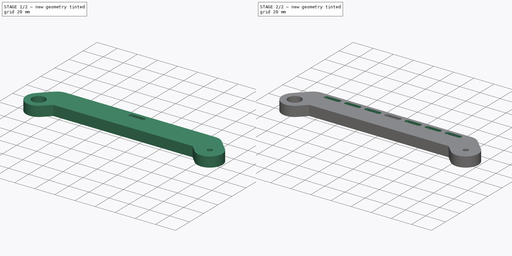
[diagram: build sequence overview — one tinted view per stage of 2, left to right]
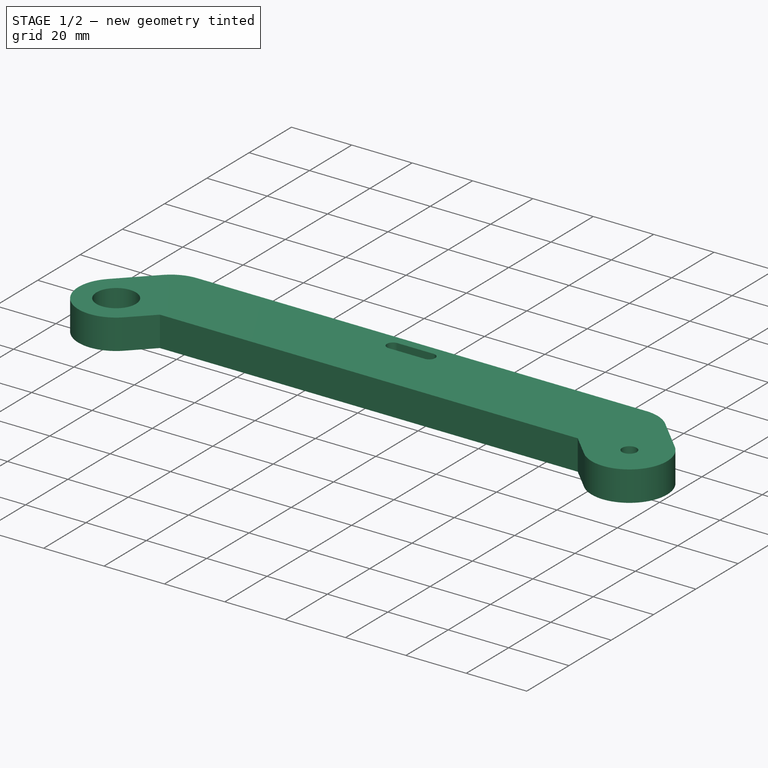
[diagram: stage 1 of 2 — iso view after this stage's code; geometry added in this stage tinted green]
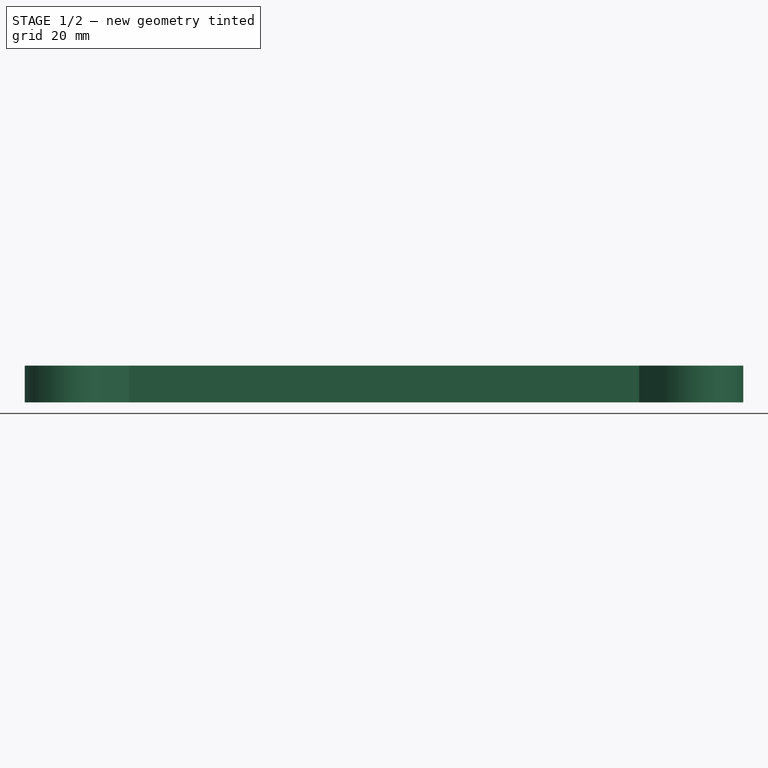
[diagram: stage 1 of 2 — front view after this stage's code; geometry added in this stage tinted green]
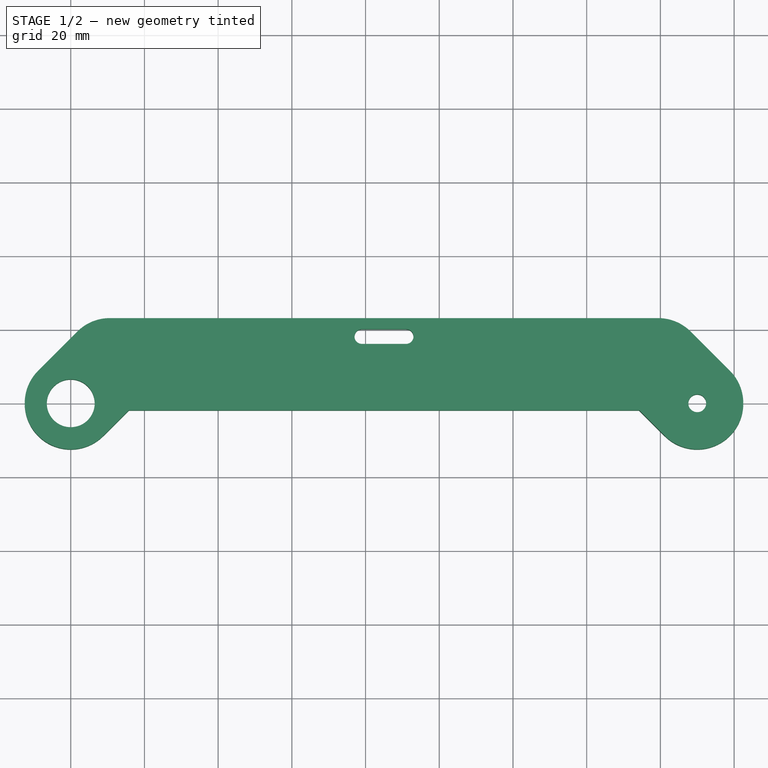
[diagram: stage 1 of 2 — top view after this stage's code; geometry added in this stage tinted green]
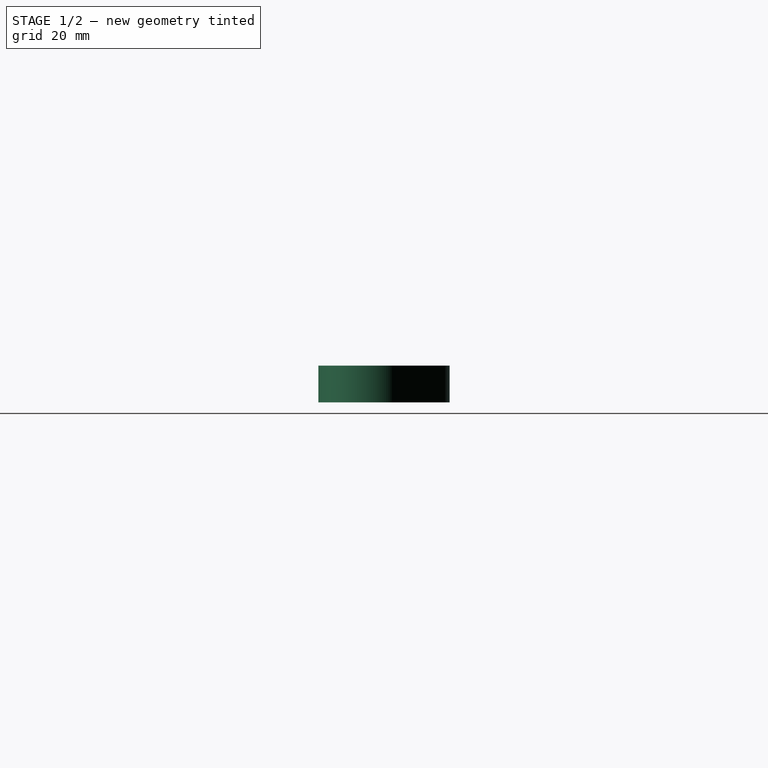
[diagram: stage 1 of 2 — right view after this stage's code; geometry added in this stage tinted green]
FCSTD DOCUMENT  (FreeCAD 0.20R29410 (Git))
Label: #20_Link2Parallel
License: All rights reserved
LicenseURL: http://en.wikipedia.org/wiki/All_rights_reserved
objects: Sketcher::SketchObject×2, PartDesign::LinearPattern×2, PartDesign::Pad×1, PartDesign::Pocket×1, PartDesign::Body×1
note: 9 computed .brp shape members not serialized (recipe doc carries the construction recipe); baked Part::Feature solids carry a one-line shape summary decoded from their .brp

FEATURE [Sketcher::SketchObject] Sketch
  FullyConstrained = true
  MapMode = 5
  Support = -> [XY_Plane]
  sketch-geometry (14):
    g0: Circle CenterX=0 CenterY=0 CenterZ=0 NormalX=0 NormalY=0 NormalZ=1 AngleXU=0 Radius=6.5
    g1: Circle CenterX=170 CenterY=0 CenterZ=0 NormalX=0 NormalY=0 NormalZ=1 AngleXU=0 Radius=2.425
    g2: ArcOfCircle CenterX=0 CenterY=0 CenterZ=0 NormalX=0 NormalY=0 NormalZ=1 AngleXU=0 Radius=12.5 StartAngle=2.35619 EndAngle=5.49779
    g3: ArcOfCircle CenterX=170 CenterY=0 CenterZ=0 NormalX=0 NormalY=0 NormalZ=1 AngleXU=0 Radius=12.5 StartAngle=3.92699 EndAngle=7.06858
    g4: LineSegment StartX=-8.83883 StartY=8.83883 StartZ=0 EndX=1.76777 EndY=19.4454 EndZ=0
    g5: LineSegment StartX=10.6066 StartY=23.1066 StartZ=0 EndX=159.393 EndY=23.1066 EndZ=0
    g6: LineSegment StartX=168.232 StartY=19.4454 StartZ=0 EndX=178.839 EndY=8.83883 EndZ=0
    g7: ArcOfCircle CenterX=159.393 CenterY=10.6066 CenterZ=0 NormalX=0 NormalY=0 NormalZ=1 AngleXU=0 Radius=12.5 StartAngle=0.785398 EndAngle=1.5708
    g8: ArcOfCircle CenterX=10.6066 CenterY=10.6066 CenterZ=0 NormalX=0 NormalY=0 NormalZ=1 AngleXU=0 Radius=12.5 StartAngle=1.5708 EndAngle=2.35619
    g9: LineSegment StartX=0 StartY=0 StartZ=0 EndX=10.6066 EndY=10.6066 EndZ=0
    g10: LineSegment StartX=159.393 StartY=10.6066 StartZ=0 EndX=170 EndY=0 EndZ=0
    g11: LineSegment StartX=15.7843 StartY=-1.8934 StartZ=0 EndX=154.216 EndY=-1.8934 EndZ=0
    g12: LineSegment StartX=154.216 StartY=-1.8934 StartZ=0 EndX=161.161 EndY=-8.83883 EndZ=0
    g13: LineSegment StartX=15.7843 StartY=-1.8934 StartZ=0 EndX=8.83883 EndY=-8.83883 EndZ=0
  constraints (33):
    c: Coincident(g0,g-1)
    c: Diameter(g0) = 13
    c: PointOnObject(g1,g-1)
    c: Diameter(g1) = 4.85
    c: Coincident(g2,g0)
    c: Coincident(g3,g1)
    c: Diameter(g3) = 25
    c: Diameter(g2) = 25
    c: Horizontal(g5)
    c: Tangent(g6,g7) = 1.5708
    c: Tangent(g5,g7) = 1.5708
    c: Tangent(g5,g8) = 1.5708
    c: Tangent(g4,g8) = 1.5708
    c: Coincident(g9,g0)
    c: Coincident(g9,g8)
    c: Coincident(g10,g7)
    c: Coincident(g10,g1)
    c: Equal(g9,g10)
    c: Angle(g10,g-1) = 0.785398
    c: Angle(g-1,g9) = 0.785398
    c: Distance(g10) = 15
    c: Diameter(g7) = 25
    c: Horizontal(g11)
    c: Coincident(g12,g11)
    c: Coincident(g13,g11)
    c: Parallel(g6,g12)
    c: Parallel(g4,g13)
    c: DistanceY(g11,g5) = 25
    c: Distance(g1,g0) = 170
    c: Tangent(g3,g6) = 1.5708
    c: Tangent(g3,g12) = -1.5708
    c: Tangent(g2,g13) = 1.5708
    c: Tangent(g2,g4) = 1.5708
FEATURE [PartDesign::Pad] Pad
  Direction = (0,0,1)
  Length = 10
  Length2 = 10
  Profile = -> Sketch
  ReferenceAxis = -> Sketch [N_Axis]
  Refine = true
  Type = 0
FEATURE [Sketcher::SketchObject] Sketch001
  ExternalGeometry = -> [Pad]
  FullyConstrained = true
  MapMode = 5
  Placement = pos=(0,0,10) rot=(0,0,1;0rad)
  Support = -> [Pad]
  sketch-geometry (6):
    g0: ArcOfCircle CenterX=79 CenterY=18.1066 CenterZ=0 NormalX=0 NormalY=0 NormalZ=1 AngleXU=0 Radius=2 StartAngle=1.5708 EndAngle=4.71239
    g1: ArcOfCircle CenterX=91 CenterY=18.1066 CenterZ=0 NormalX=0 NormalY=0 NormalZ=1 AngleXU=0 Radius=2 StartAngle=4.71239 EndAngle=7.85398
    g2: LineSegment StartX=79 StartY=16.1066 StartZ=0 EndX=91 EndY=16.1066 EndZ=0
    g3: LineSegment StartX=91 StartY=20.1066 StartZ=0 EndX=79 EndY=20.1066 EndZ=0
    g4: LineSegment StartX=15.7843 StartY=-1.8934 StartZ=0 EndX=79 EndY=18.1066 EndZ=0
    g5: LineSegment StartX=91 StartY=18.1066 StartZ=0 EndX=154.216 EndY=-1.8934 EndZ=0
  constraints (14):
    c: Tangent(g0,g2) = -1.5708
    c: Tangent(g2,g1) = -1.5708
    c: Tangent(g1,g3) = -1.5708
    c: Tangent(g3,g0) = -1.5708
    c: Equal(g0,g1)
    c: Horizontal(g2)
    c: Diameter(g1) = 4
    c: Distance(g0,g1) = 12
    c: DistanceY(g-3,g1) = 20
    c: Coincident(g4,g-3)
    c: Coincident(g4,g0)
    c: Coincident(g5,g1)
    c: Coincident(g5,g-3)
    c: Equal(g5,g4)
FEATURE [PartDesign::Pocket] Pocket
  BaseFeature = -> Pad
  Direction = (0,0,-1)
  Length = 15
  Length2 = 5
  Profile = -> Sketch001
  ReferenceAxis = -> Sketch001 [N_Axis]
  Refine = true
  Type = 0
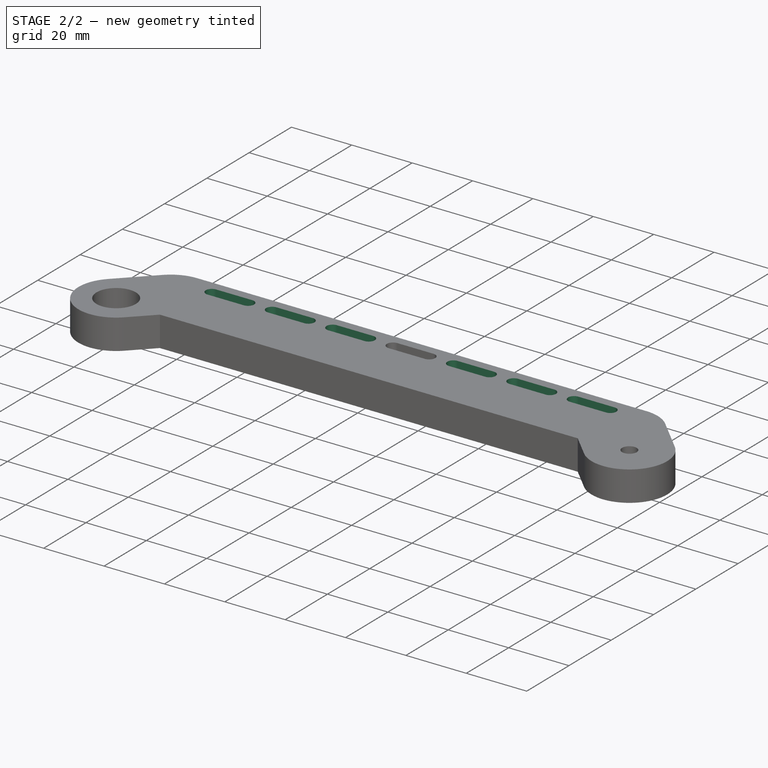
[diagram: stage 2 of 2 — iso view after this stage's code; geometry added in this stage tinted green]
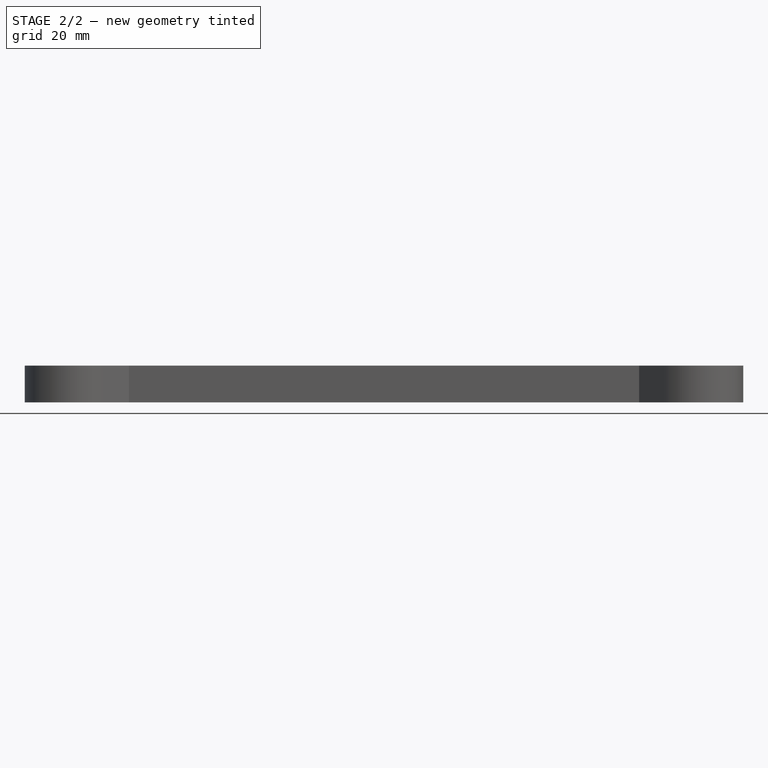
[diagram: stage 2 of 2 — front view after this stage's code; geometry added in this stage tinted green]
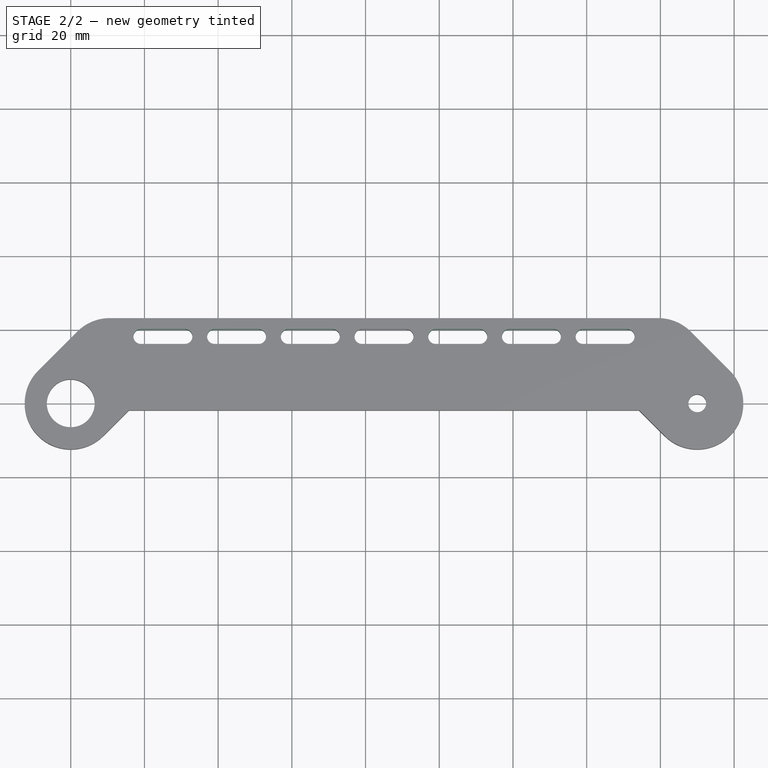
[diagram: stage 2 of 2 — top view after this stage's code; geometry added in this stage tinted green]
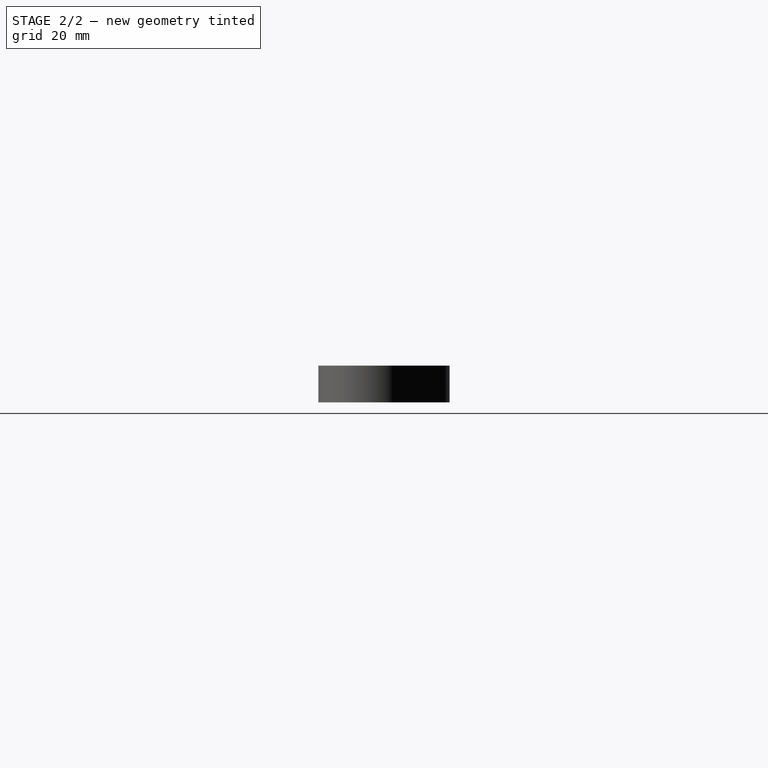
[diagram: stage 2 of 2 — right view after this stage's code; geometry added in this stage tinted green]
FEATURE [PartDesign::LinearPattern] LinearPattern
  BaseFeature = -> Pocket
  Direction = -> Sketch001 [H_Axis]
  Length = 60
  Occurrences = 4
  Originals = -> [Pocket]
  Refine = true
FEATURE [PartDesign::LinearPattern] LinearPattern001
  BaseFeature = -> LinearPattern
  Direction = -> Sketch001 [H_Axis]
  Length = 60
  Occurrences = 4
  Originals = -> [Pocket]
  Refine = true
  Reversed = true
FEATURE [PartDesign::Body] Body
  Group = -> [Sketch,Pad,Sketch001,Pocket,LinearPattern,LinearPattern001]
  Origin = -> Origin
  Tip = -> LinearPattern001
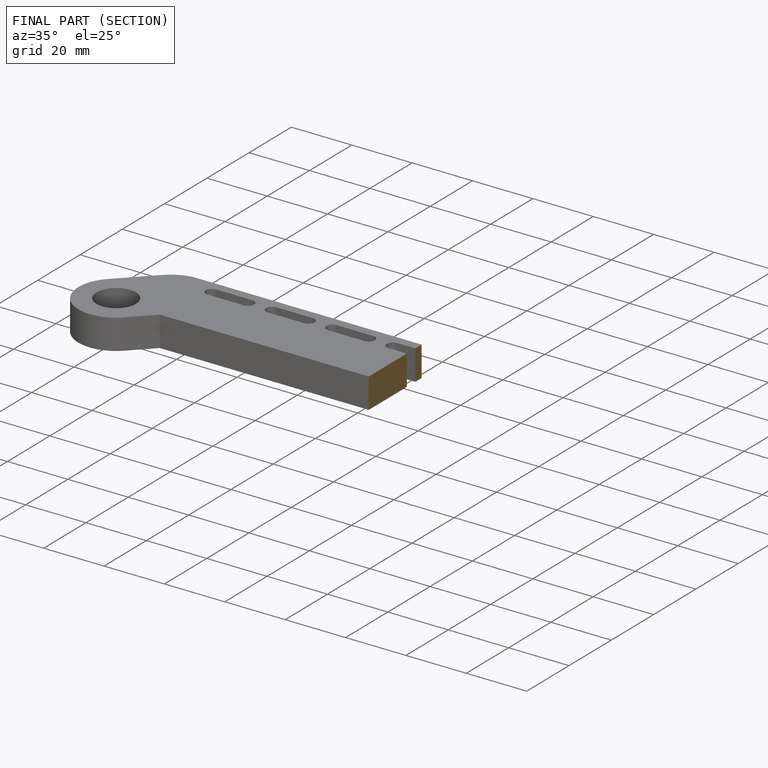
[diagram: finished part — half-section view (interior)]
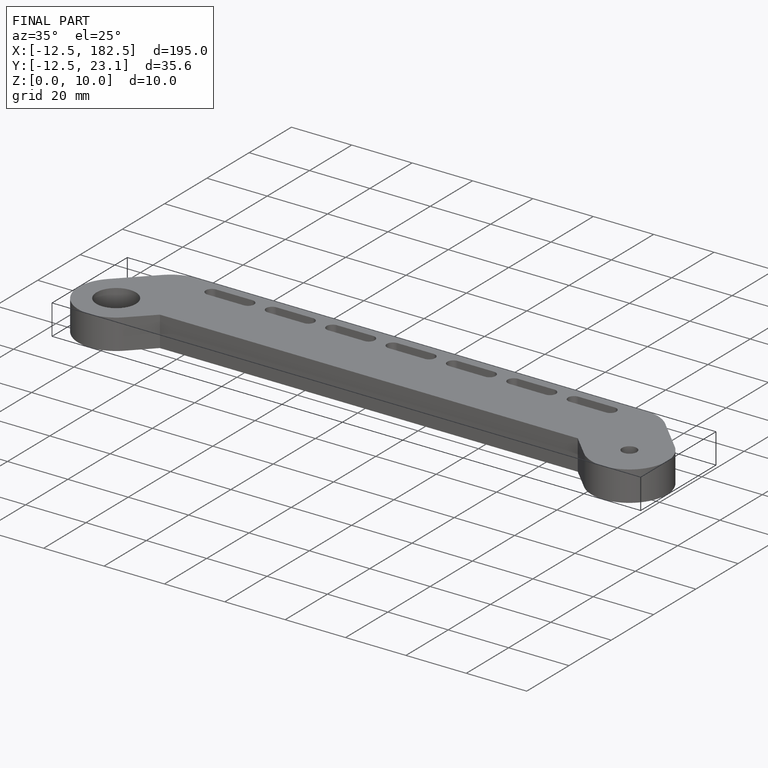
[diagram: finished part — iso view with bounding-box wireframe]
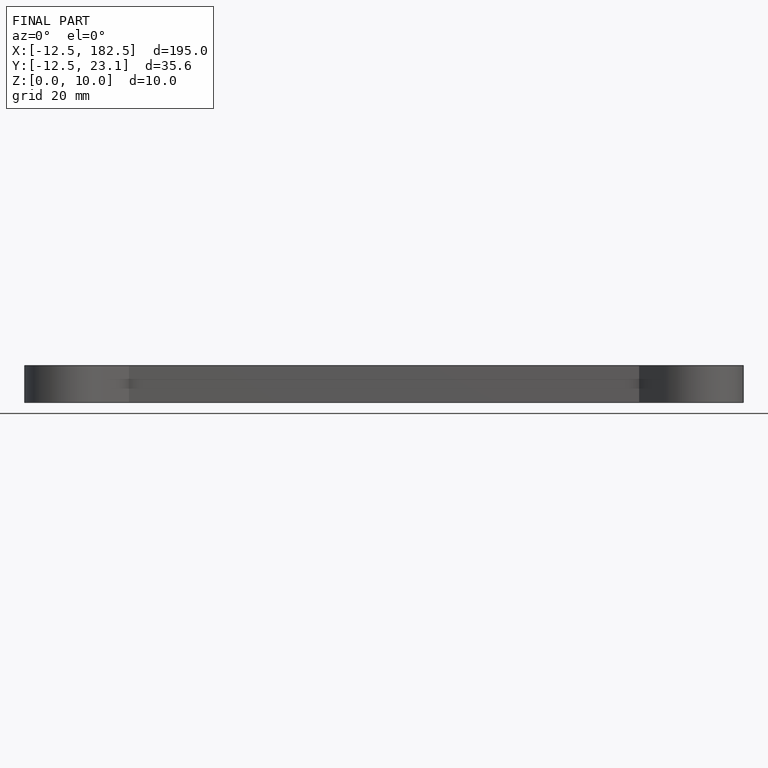
[diagram: finished part — front view with bounding-box wireframe]
